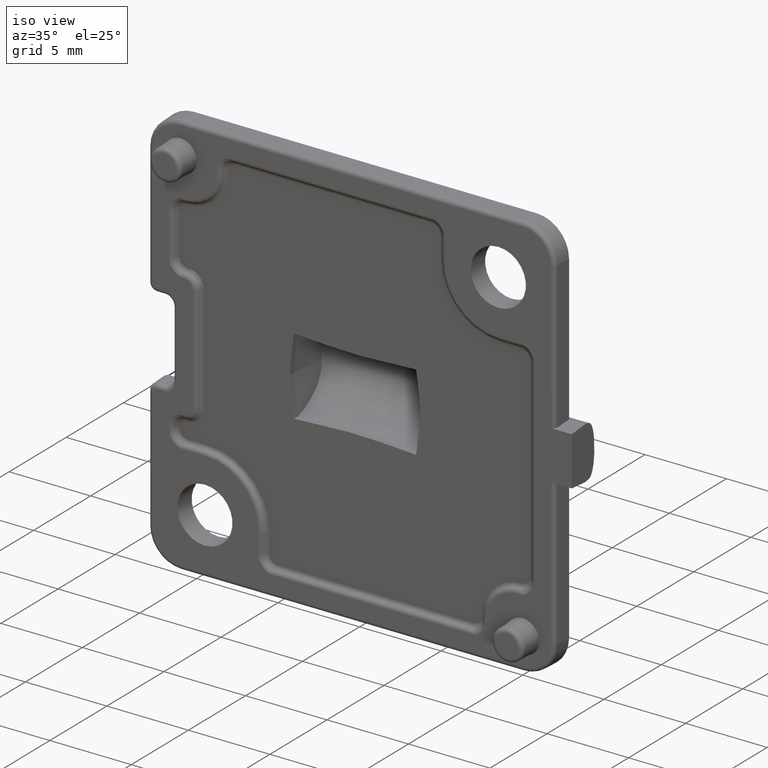
[diagram: clean part render]
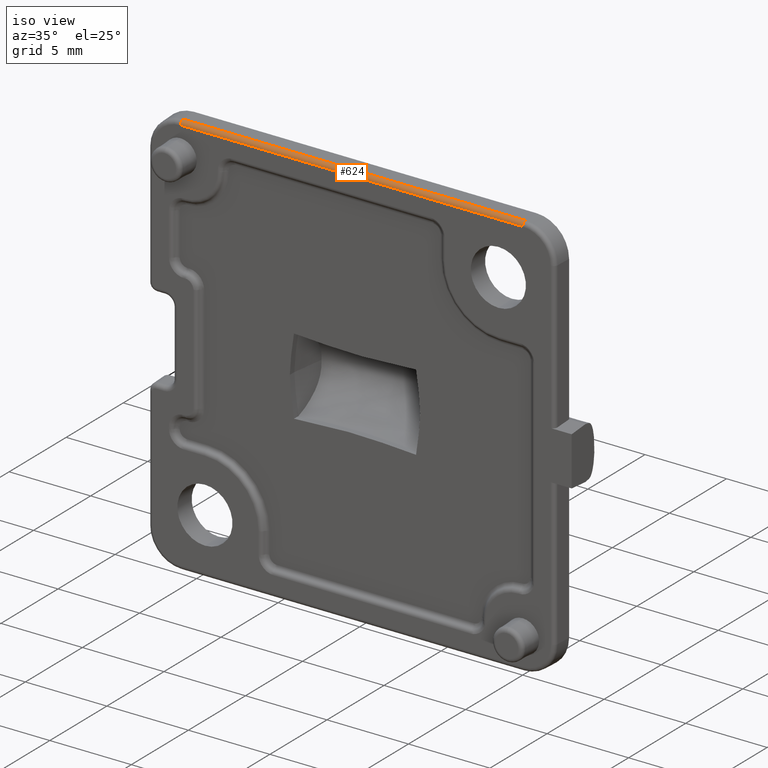
[diagram: same view with one face highlighted and labeled with its STEP entity id]
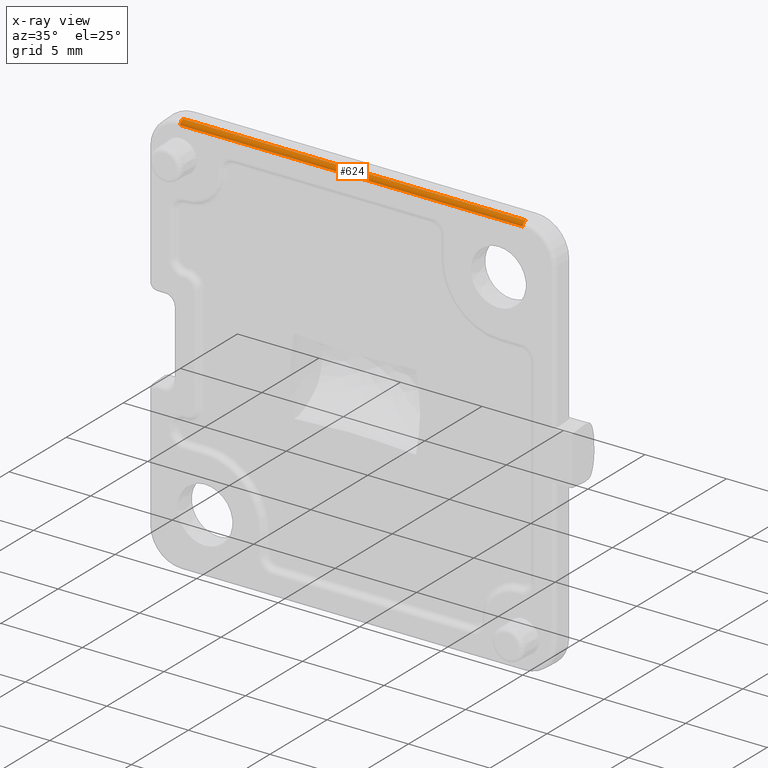
[diagram: x-ray of the same camera — body ghosted, the highlighted face saturated]
A machine part, iso view. The second image highlights one B-rep face of the part: STEP entity #624.
The next image is the same camera in x-ray: the body ghosted, the highlighted face saturated — about 0% of this face is hidden behind the body in this view.
In plain terms, the highlighted cylindrical surface (edge-blend (fillet) strip) has radius 0.25 mm, axis along (-1, 0, 0).
Its self-contained STEP definition (entity closure, byte-faithful):
#108 = EDGE_CURVE ( 'NONE', #2169, #2832, #1684, .T. ) ;
#112 = CARTESIAN_POINT ( 'NONE',  ( -10.50000000000000200, -0.4587248741756251900, 12.46652058966291100 ) ) ;
#624 = ADVANCED_FACE ( 'NONE', ( #6186 ), #6019, .T. ) ;
#1018 = DIRECTION ( 'NONE',  ( -1.000000000000000000, 0.0000000000000000000, 4.130293990420969400E-016 ) ) ;
#1350 = ORIENTED_EDGE ( 'NONE', *, *, #3591, .F. ) ;
#1684 = CIRCLE ( 'NONE', #2217, 0.2500000000000002200 ) ;
#1697 = DIRECTION ( 'NONE',  ( -1.000000000000000000, 0.0000000000000000000, 0.0000000000000000000 ) ) ;
#1808 = CARTESIAN_POINT ( 'NONE',  ( 10.49999999999999800, -0.4500000000000000100, 12.21667288290813100 ) ) ;
#2169 = VERTEX_POINT ( 'NONE', #6461 ) ;
#2217 = AXIS2_PLACEMENT_3D ( 'NONE', #1808, #1697, #7275 ) ;
#2477 = VECTOR ( 'NONE', #3635, 1000.000000000000000 ) ;
#2822 = DIRECTION ( 'NONE',  ( -1.000000000000000000, 0.0000000000000000000, 0.0000000000000000000 ) ) ;
#2832 = VERTEX_POINT ( 'NONE', #5184 ) ;
#3566 = AXIS2_PLACEMENT_3D ( 'NONE', #6141, #2822, #6678 ) ;
#3591 = EDGE_CURVE ( 'NONE', #6376, #5737, #5794, .T. ) ;
#3635 = DIRECTION ( 'NONE',  ( 1.000000000000000000, 0.0000000000000000000, -4.130293990420969400E-016 ) ) ;
#3981 = LINE ( 'NONE', #112, #2477 ) ;
#4062 = VECTOR ( 'NONE', #1018, 1000.000000000000000 ) ;
#4191 = ORIENTED_EDGE ( 'NONE', *, *, #5716, .F. ) ;
#4418 = ORIENTED_EDGE ( 'NONE', *, *, #5314, .F. ) ;
#4474 = CARTESIAN_POINT ( 'NONE',  ( -10.50000000000000200, -0.4587248741756250700, 12.46652058966291100 ) ) ;
#4541 = AXIS2_PLACEMENT_3D ( 'NONE', #7169, #5710, #6535 ) ;
#4874 = ORIENTED_EDGE ( 'NONE', *, *, #108, .T. ) ;
#5184 = CARTESIAN_POINT ( 'NONE',  ( 10.49999999999999800, -0.4587248741756251900, 12.46652058966290600 ) ) ;
#5314 = EDGE_CURVE ( 'NONE', #5737, #2832, #3981, .T. ) ;
#5581 = CARTESIAN_POINT ( 'NONE',  ( -12.00000000000000000, -0.6999999999999999600, 12.21667288290814000 ) ) ;
#5710 = DIRECTION ( 'NONE',  ( -1.000000000000000000, 0.0000000000000000000, 4.130293990420969400E-016 ) ) ;
#5716 = EDGE_CURVE ( 'NONE', #2169, #6376, #7336, .T. ) ;
#5737 = VERTEX_POINT ( 'NONE', #4474 ) ;
#5794 = CIRCLE ( 'NONE', #3566, 0.2500000000000002200 ) ;
#6019 = CYLINDRICAL_SURFACE ( 'NONE', #4541, 0.2500000000000002200 ) ;
#6141 = CARTESIAN_POINT ( 'NONE',  ( -10.50000000000000200, -0.4500000000000000100, 12.21667288290813900 ) ) ;
#6186 = FACE_OUTER_BOUND ( 'NONE', #7140, .T. ) ;
#6310 = CARTESIAN_POINT ( 'NONE',  ( -10.50000000000000200, -0.6999999999999999600, 12.21667288290813700 ) ) ;
#6376 = VERTEX_POINT ( 'NONE', #6310 ) ;
#6461 = CARTESIAN_POINT ( 'NONE',  ( 10.49999999999999800, -0.6999999999999999600, 12.21667288290813000 ) ) ;
#6535 = DIRECTION ( 'NONE',  ( 0.0000000000000000000, 0.0000000000000000000, 1.000000000000000000 ) ) ;
#6678 = DIRECTION ( 'NONE',  ( 0.0000000000000000000, 0.0000000000000000000, 1.000000000000000000 ) ) ;
#7140 = EDGE_LOOP ( 'NONE', ( #4874, #4418, #1350, #4191 ) ) ;
#7169 = CARTESIAN_POINT ( 'NONE',  ( -10.50000000000000200, -0.4500000000000000100, 12.21667288290813900 ) ) ;
#7275 = DIRECTION ( 'NONE',  ( 0.0000000000000000000, 0.0000000000000000000, 1.000000000000000000 ) ) ;
#7336 = LINE ( 'NONE', #5581, #4062 ) ;